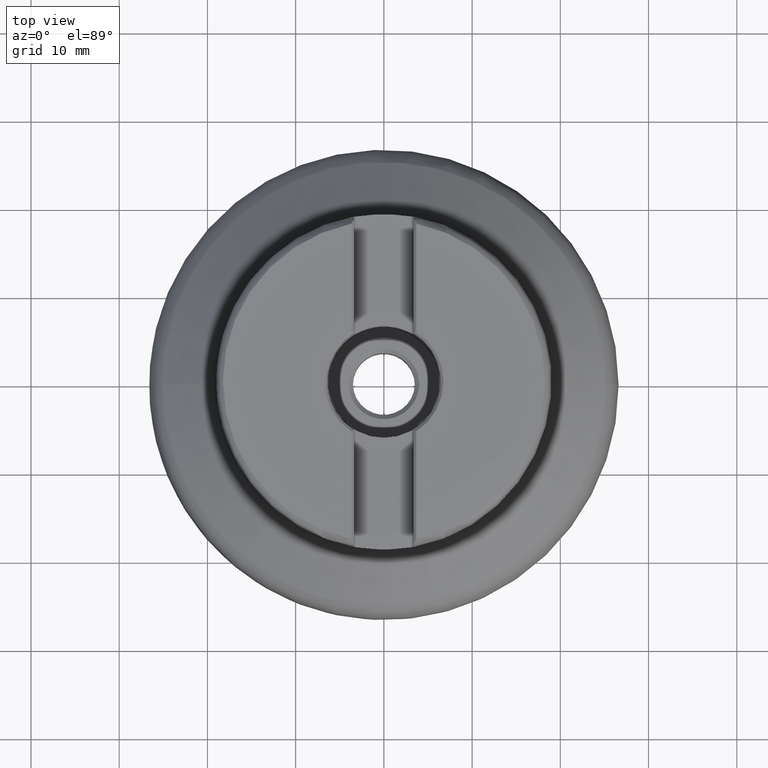
[diagram: clean part render]
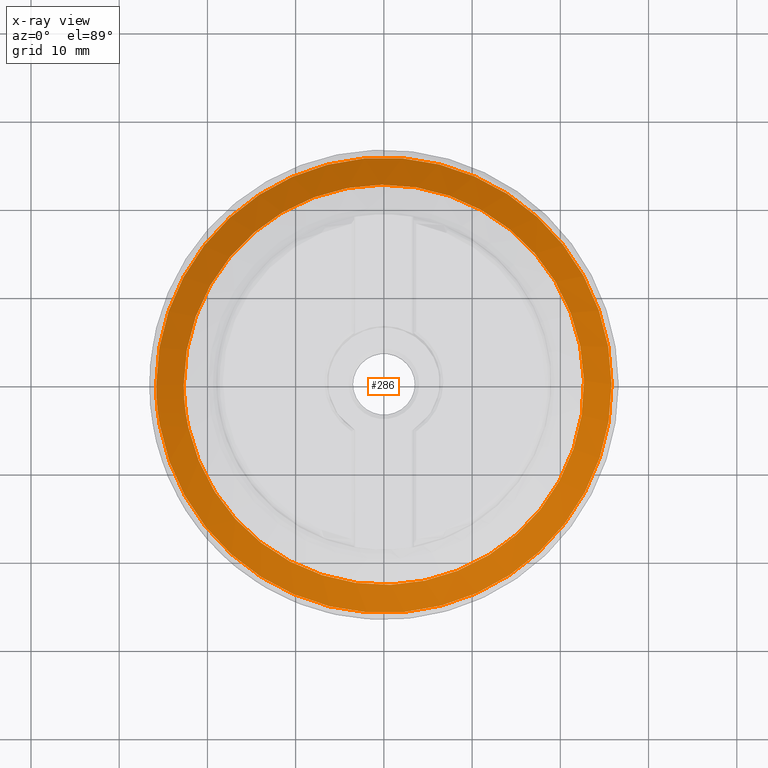
[diagram: x-ray — body ghosted, one internal face saturated and labeled with its STEP entity id]
A machine part, top view, then the same camera in x-ray: the body is ghosted and one INTERNAL B-rep face — a face not visible from any outside direction — is saturated and labeled: STEP entity #286.
In plain terms, the highlighted face is a SurfaceOfRevolution surface.
Its self-contained STEP definition (entity closure, byte-faithful):
#127=SURFACE_OF_REVOLUTION('',#333,#151);
#151=AXIS1_PLACEMENT('',#2320,#1554);
#286=ADVANCED_FACE('',(#454,#455),#127,.F.);
#333=LINE('',#2319,#365);
#365=VECTOR('',#1553,4.41942801874016);
#454=FACE_BOUND('',#580,.T.);
#455=FACE_BOUND('',#581,.T.);
#580=EDGE_LOOP('',(#814));
#581=EDGE_LOOP('',(#815));
#814=ORIENTED_EDGE('',*,*,#1037,.T.);
#815=ORIENTED_EDGE('',*,*,#1038,.F.);
#920=VERTEX_POINT('',#2308);
#921=VERTEX_POINT('',#2318);
#1037=EDGE_CURVE('',#920,#920,#1102,.T.);
#1038=EDGE_CURVE('',#921,#921,#1103,.T.);
#1102=CIRCLE('',#1282,25.8081628131072);
#1103=CIRCLE('',#1283,22.6818668920091);
#1282=AXIS2_PLACEMENT_3D('',#2307,#1548,#1549);
#1283=AXIS2_PLACEMENT_3D('',#2317,#1551,#1552);
#1548=DIRECTION('',(-1.17145536458252E-15,0.,-1.));
#1549=DIRECTION('',(-1.,0.,1.1426733202655E-15));
#1551=DIRECTION('',(-1.17145536458252E-15,0.,-1.));
#1552=DIRECTION('',(-1.,0.,1.14720945429846E-15));
#1553=DIRECTION('',(-0.558840768406984,-0.488435743747625,-0.670169769383846));
#1554=DIRECTION('',(-1.17145536458252E-15,0.,-1.));
#2307=CARTESIAN_POINT('',(1.03649481738681E-14,0.,8.84792411835676));
#2308=CARTESIAN_POINT('',(-25.8081628131072,0.,8.84792411835679));
#2317=CARTESIAN_POINT('',(1.38345260804126E-14,0.,11.8096911744844));
#2318=CARTESIAN_POINT('',(-22.6818668920091,0.,11.8096911744844));
#2319=CARTESIAN_POINT('',(-11.3461982056903,-19.6400323824583,11.8096911744844));
#2320=CARTESIAN_POINT('',(0.,0.,0.));